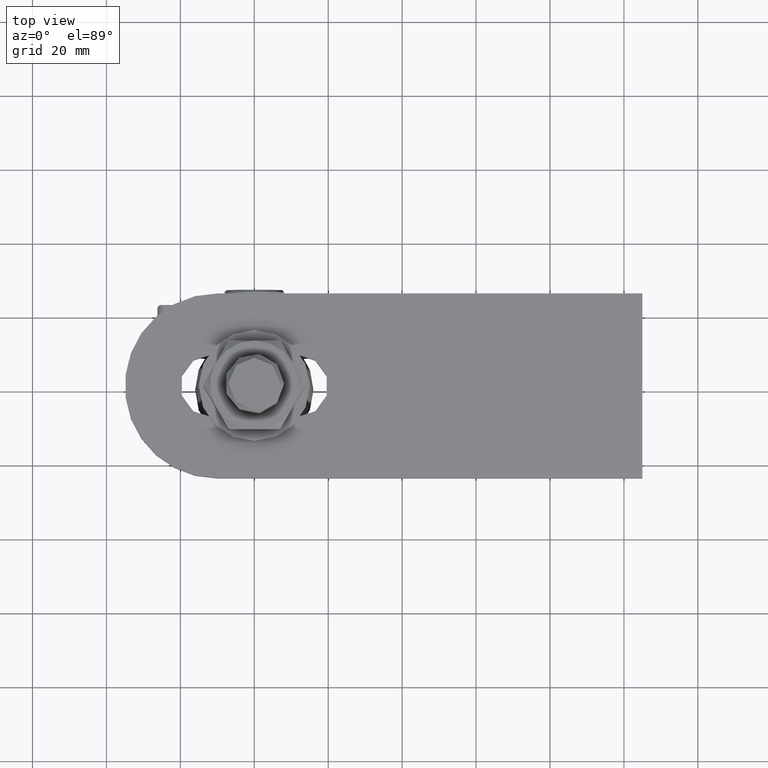
[diagram: clean part render]
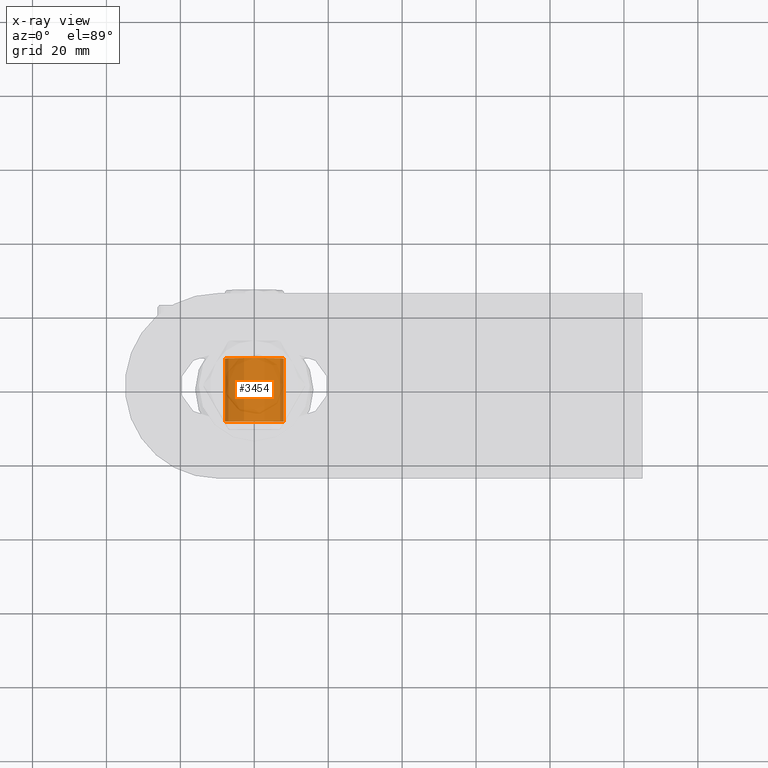
[diagram: x-ray — body ghosted, one internal face saturated and labeled with its STEP entity id]
A machine part, top view, then the same camera in x-ray: the body is ghosted and one INTERNAL B-rep face — a face not visible from any outside direction — is saturated and labeled: STEP entity #3454.
In plain terms, the highlighted cylindrical surface (bore or boss wall) has radius 8.1 mm, axis along (-0, -1, -0).
Its self-contained STEP definition (entity closure, byte-faithful):
#903 = CYLINDRICAL_SURFACE ( 'NONE', #26931, 8.100000000000001421 ) ;
#3372 = DIRECTION ( 'NONE',  ( -0.000000000000000000, -1.000000000000000000, -1.836970198721029688E-16 ) ) ;
#3454 = ADVANCED_FACE ( 'NONE', ( #6199, #23997 ), #903, .F. ) ;
#3470 = CARTESIAN_POINT ( 'NONE',  ( 0.000000000000000000, -8.500000000000001776, -2.733312203901236010E-31 ) ) ;
#4149 = CARTESIAN_POINT ( 'NONE',  ( 0.000000000000000000, -8.500000000000000000, 0.000000000000000000 ) ) ;
#4817 = VERTEX_POINT ( 'NONE', #21028 ) ;
#6199 = FACE_OUTER_BOUND ( 'NONE', #11070, .T. ) ;
#7621 = CARTESIAN_POINT ( 'NONE',  ( 0.000000000000000000, 8.500000000000003553, 3.122849337825751406E-15 ) ) ;
#7640 = VERTEX_POINT ( 'NONE', #14084 ) ;
#7919 = DIRECTION ( 'NONE',  ( 0.000000000000000000, 2.141633920959020754E-16, -1.000000000000000000 ) ) ;
#9852 = DIRECTION ( 'NONE',  ( 0.000000000000000000, 2.141633920959020754E-16, -1.000000000000000000 ) ) ;
#11070 = EDGE_LOOP ( 'NONE', ( #19765 ) ) ;
#11843 = EDGE_LOOP ( 'NONE', ( #14967 ) ) ;
#14084 = CARTESIAN_POINT ( 'NONE',  ( 0.000000000000000000, 8.500000000000005329, -8.099999999999997868 ) ) ;
#14372 = AXIS2_PLACEMENT_3D ( 'NONE', #3470, #18830, #7919 ) ;
#14967 = ORIENTED_EDGE ( 'NONE', *, *, #24413, .F. ) ;
#15881 = CIRCLE ( 'NONE', #18460, 8.100000000000001421 ) ;
#18460 = AXIS2_PLACEMENT_3D ( 'NONE', #7621, #18624, #9852 ) ;
#18624 = DIRECTION ( 'NONE',  ( -0.000000000000000000, -1.000000000000000000, -1.836970198721029688E-16 ) ) ;
#18830 = DIRECTION ( 'NONE',  ( -0.000000000000000000, -1.000000000000000000, -1.836970198721029688E-16 ) ) ;
#19765 = ORIENTED_EDGE ( 'NONE', *, *, #23689, .T. ) ;
#21028 = CARTESIAN_POINT ( 'NONE',  ( 0.000000000000000000, -8.500000000000000000, -8.100000000000001421 ) ) ;
#21947 = DIRECTION ( 'NONE',  ( 0.000000000000000000, 2.141633920959020754E-16, -1.000000000000000000 ) ) ;
#22540 = CIRCLE ( 'NONE', #14372, 8.100000000000001421 ) ;
#23689 = EDGE_CURVE ( 'NONE', #4817, #4817, #22540, .T. ) ;
#23997 = FACE_OUTER_BOUND ( 'NONE', #11843, .T. ) ;
#24413 = EDGE_CURVE ( 'NONE', #7640, #7640, #15881, .T. ) ;
#26931 = AXIS2_PLACEMENT_3D ( 'NONE', #4149, #3372, #21947 ) ;